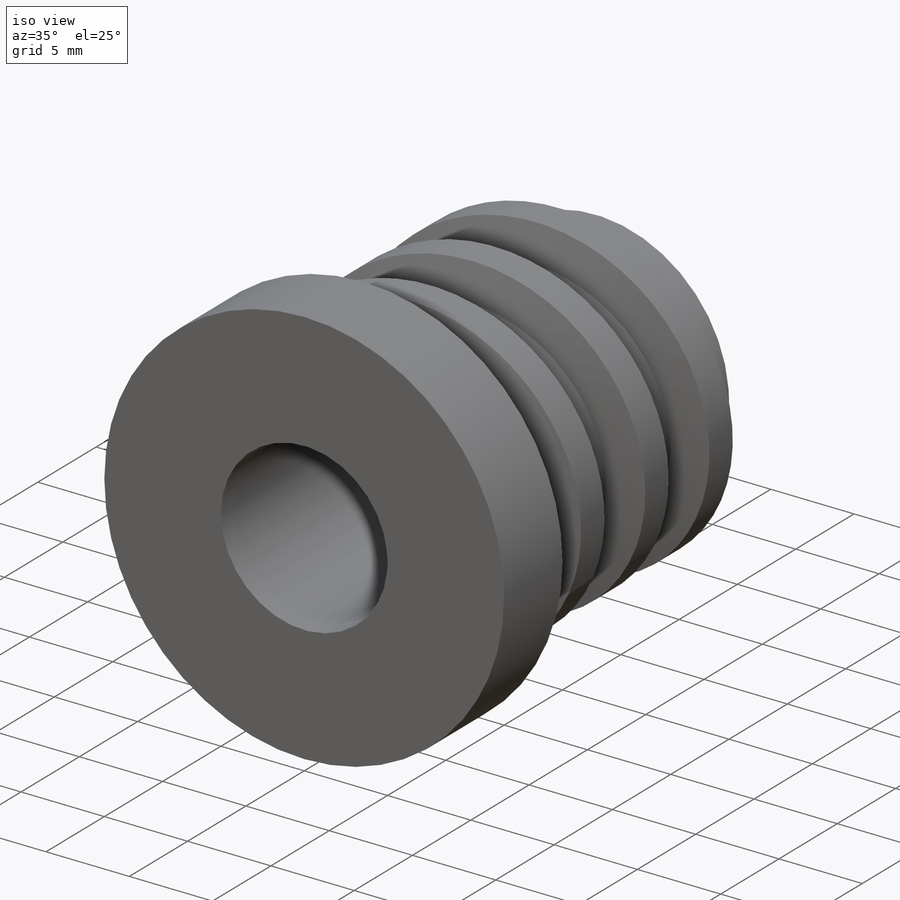
[diagram: iso view]
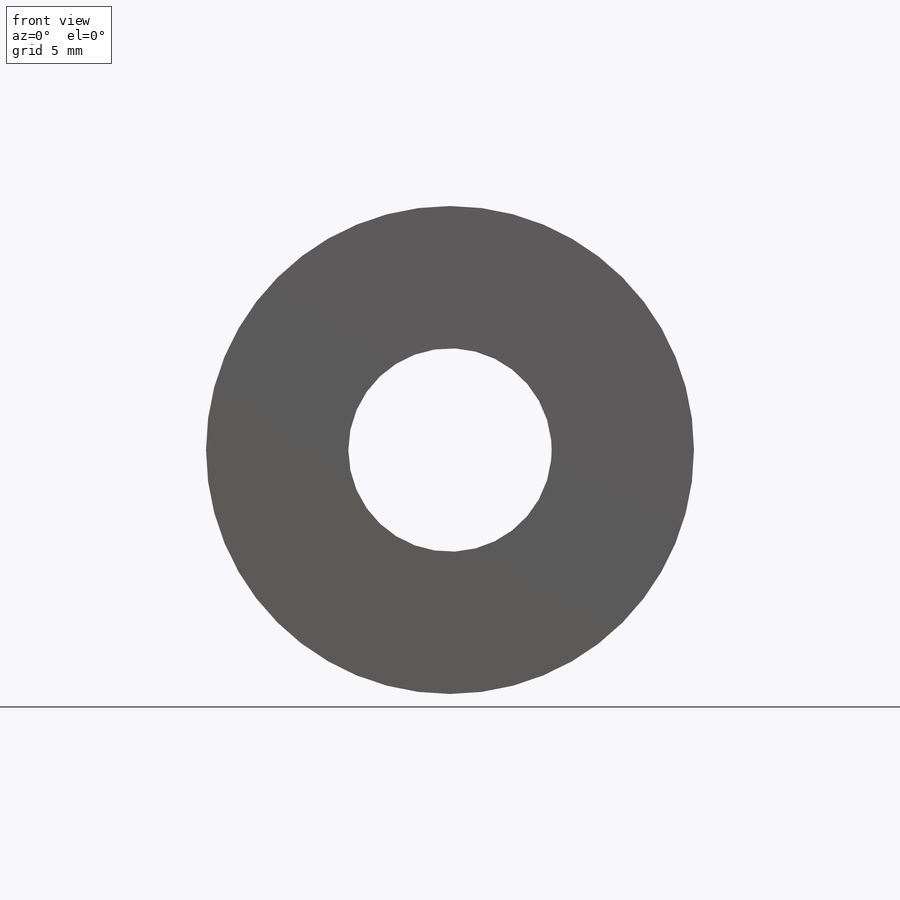
[diagram: front view]
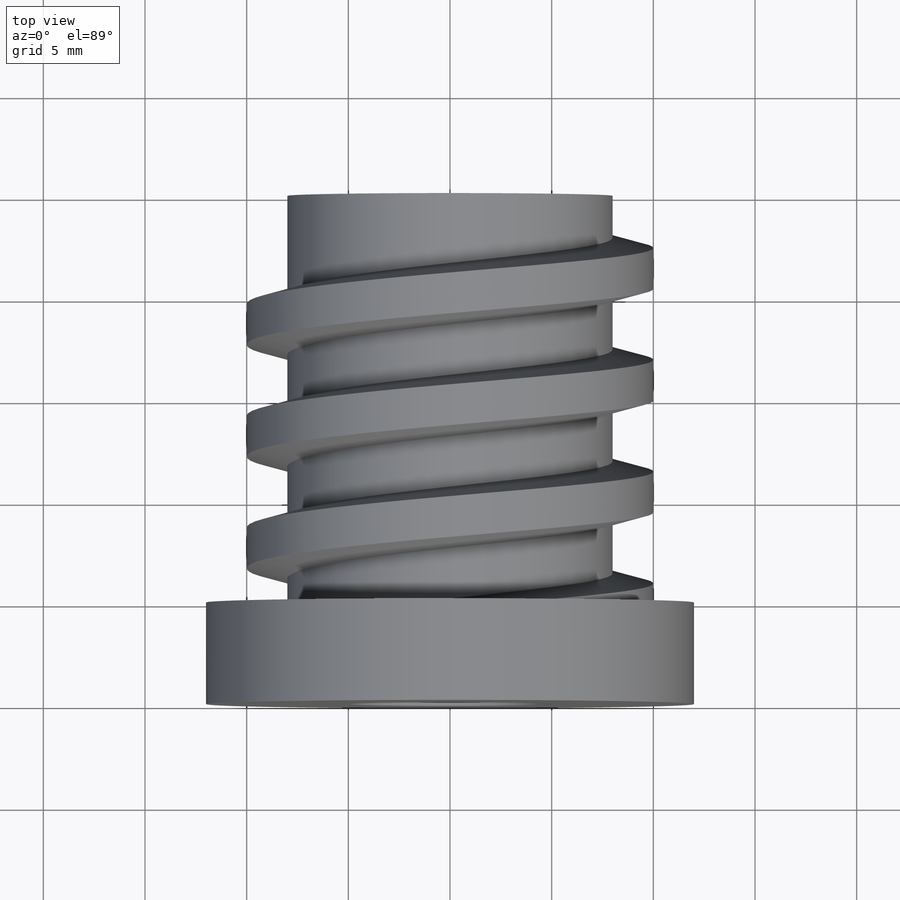
[diagram: top view]
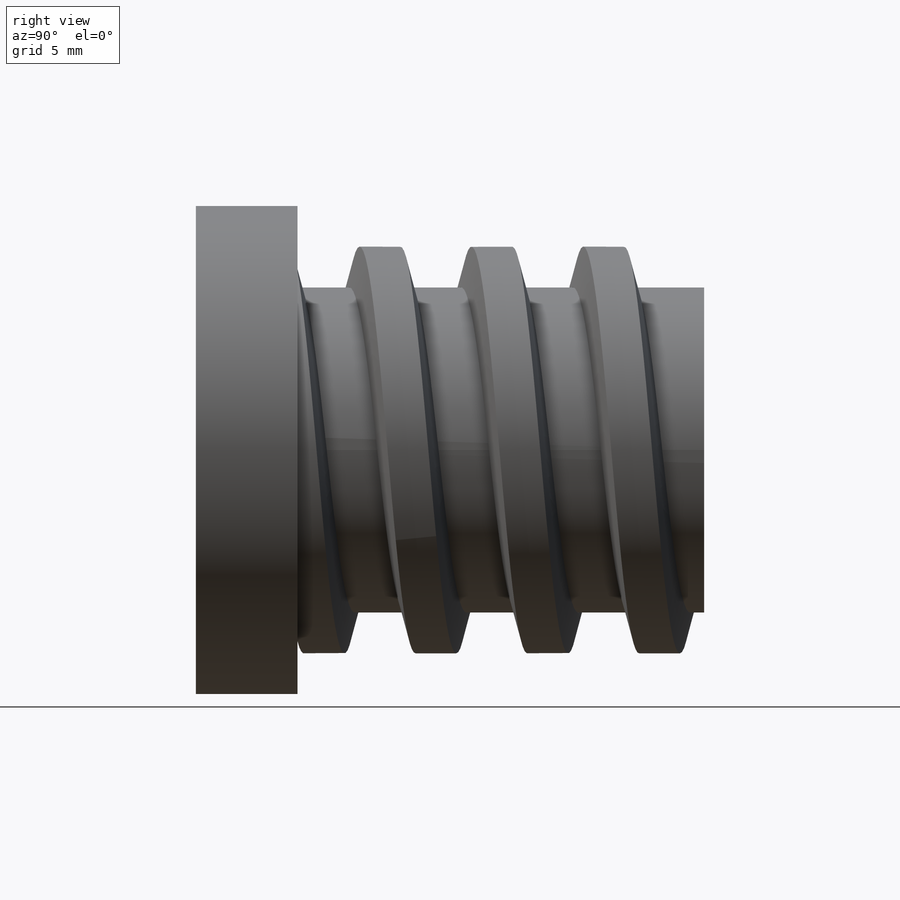
[diagram: right view]
SOLIDWORKS PART (.sldprt)
format: sldprt  version: not decoded by parser v0  size: 338,944 bytes
history: native  units: mm
features: plane x6, sketch x5, extrude x2, material x1, helix x1, sweep x1, cut_extrude x1 (+9 scaffold rows collapsed)
feature tree (26):
  scaffold x9  (default folders/planes/origin — collapsed)
  material  "材质 <未指定>"
  plane  "前视基准面"
  plane  "上视基准面"
  plane  "右视基准面"
  sketch  "草图5"  dims[D1=~5.128484mm]
  extrude  "凸台-拉伸3"  Depth=20mm
  sketch  "草图6"
  helix  "螺旋线/涡状线2"  Pitch=22mm
  plane  "基准面3"
  sketch  "草图7"  dims[D1=~11.669018mm]
  extrude  "凸台-拉伸4"  Depth=5mm
  plane  "基准面4"
  sketch  "草图8"
  sweep  "扫描2"
  plane  "基准面5"
  sketch  "草图9"  dims[D1=~5.527564mm]
  cut_extrude  "切除-拉伸1"  Depth=35mm
decode coverage: 7 of 10 modeling features carry decoded parameters
note: ~ marks probable driven/reference dimensions
note: suppression state not decoded; provenance and decode notes live in map.json
